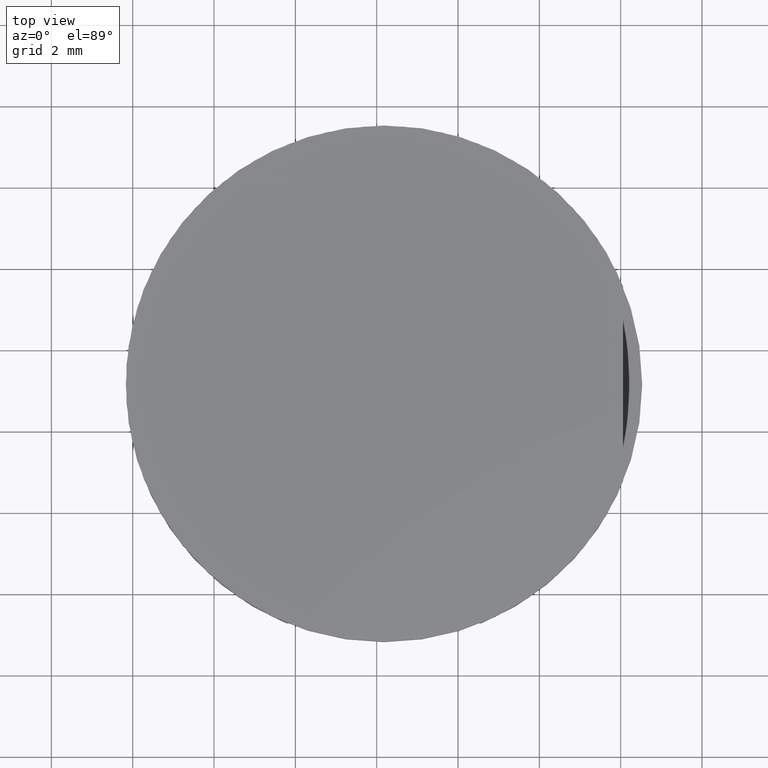
[diagram: clean part render]
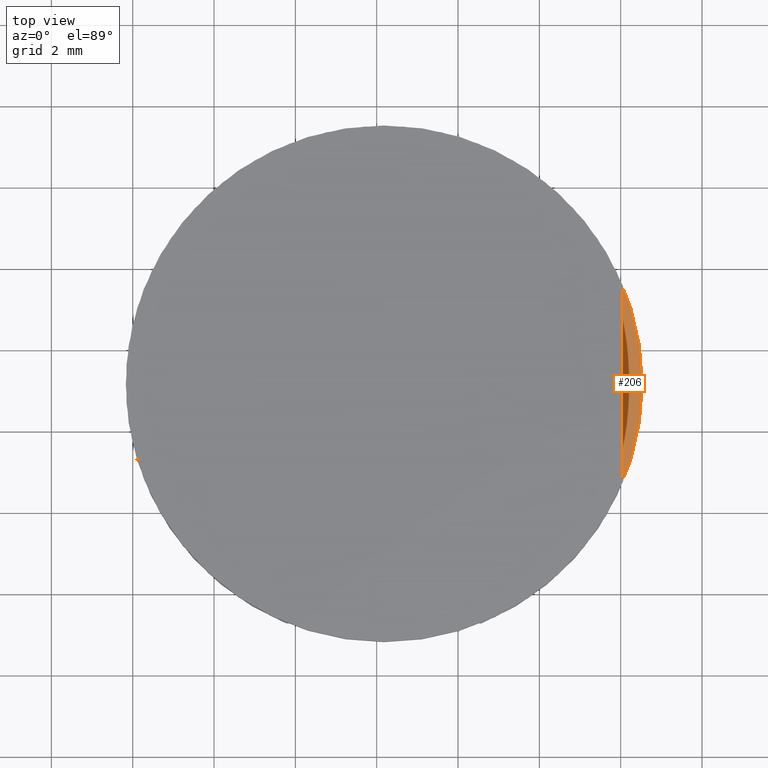
[diagram: same view with one face highlighted and labeled with its STEP entity id]
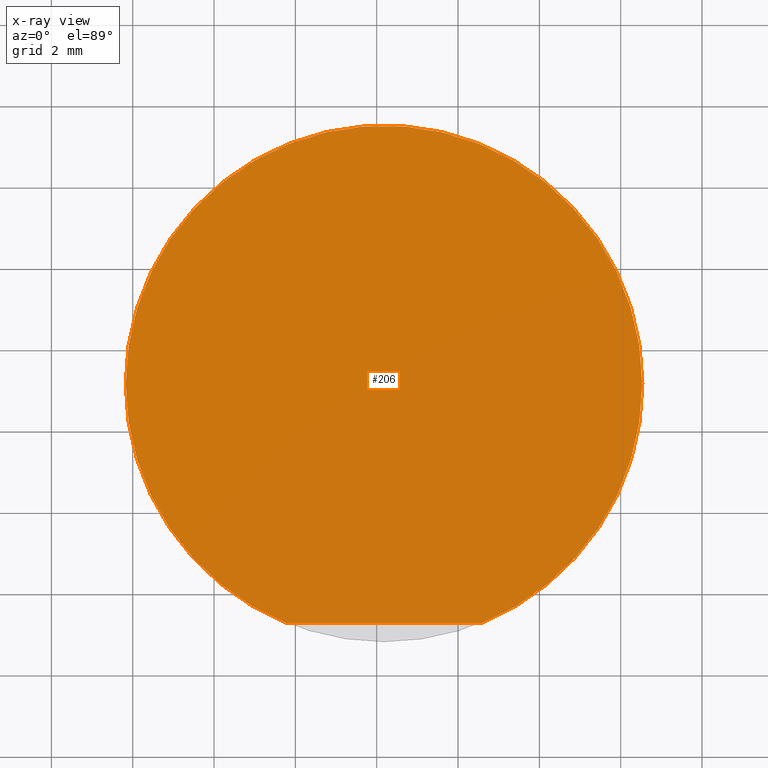
[diagram: x-ray of the same camera — body ghosted, the highlighted face saturated]
A machine part, top view. The second image highlights one B-rep face of the part: STEP entity #206.
The next image is the same camera in x-ray: the body ghosted, the highlighted face saturated — about 0% of this face is hidden behind the body in this view.
In plain terms, the highlighted planar face has unit normal (0, 0, 1).
Its self-contained STEP definition (entity closure, byte-faithful):
#23 = CARTESIAN_POINT ( 'NONE',  ( 12.17957565082418014, -0.8299026143560144231, 3.986184743181585777 ) ) ;
#27 = ORIENTED_EDGE ( 'NONE', *, *, #93, .T. ) ;
#34 = ORIENTED_EDGE ( 'NONE', *, *, #186, .T. ) ;
#46 = DIRECTION ( 'NONE',  ( -1.000000000000000000, -0.0000000000000000000, -0.0000000000000000000 ) ) ;
#51 = CARTESIAN_POINT ( 'NONE',  ( 12.17957565082418014, -0.8299026143560144231, 3.986184743181585777 ) ) ;
#55 = AXIS2_PLACEMENT_3D ( 'NONE', #370, #499, #441 ) ;
#88 = AXIS2_PLACEMENT_3D ( 'NONE', #51, #348, #176 ) ;
#92 = CARTESIAN_POINT ( 'NONE',  ( 14.57709520236072720, -6.709902614356014539, 3.986184743181585777 ) ) ;
#93 = EDGE_CURVE ( 'NONE', #508, #255, #188, .T. ) ;
#97 = CARTESIAN_POINT ( 'NONE',  ( 5.829575650824181388, -0.8299026143560144231, 3.986184743181585777 ) ) ;
#113 = ORIENTED_EDGE ( 'NONE', *, *, #158, .F. ) ;
#129 = LINE ( 'NONE', #472, #212 ) ;
#145 = AXIS2_PLACEMENT_3D ( 'NONE', #23, #406, #364 ) ;
#152 = PLANE ( 'NONE',  #304 ) ;
#158 = EDGE_CURVE ( 'NONE', #508, #539, #129, .T. ) ;
#166 = ORIENTED_EDGE ( 'NONE', *, *, #403, .T. ) ;
#176 = DIRECTION ( 'NONE',  ( 1.000000000000000000, 0.0000000000000000000, 0.0000000000000000000 ) ) ;
#186 = EDGE_CURVE ( 'NONE', #341, #539, #469, .T. ) ;
#188 = CIRCLE ( 'NONE', #88, 6.349999999999997868 ) ;
#206 = ADVANCED_FACE ( 'NONE', ( #365 ), #152, .T. ) ;
#212 = VECTOR ( 'NONE', #46, 1000.000000000000000 ) ;
#255 = VERTEX_POINT ( 'NONE', #461 ) ;
#300 = DIRECTION ( 'NONE',  ( 1.000000000000000000, 0.0000000000000000000, -0.0000000000000000000 ) ) ;
#304 = AXIS2_PLACEMENT_3D ( 'NONE', #319, #487, #300 ) ;
#319 = CARTESIAN_POINT ( 'NONE',  ( 12.17957565082418014, -0.8299026143560144231, 3.986184743181585777 ) ) ;
#341 = VERTEX_POINT ( 'NONE', #97 ) ;
#348 = DIRECTION ( 'NONE',  ( 0.0000000000000000000, 0.0000000000000000000, 1.000000000000000000 ) ) ;
#354 = CARTESIAN_POINT ( 'NONE',  ( 9.782056099287634865, -6.709902614356014539, 3.986184743181585777 ) ) ;
#364 = DIRECTION ( 'NONE',  ( 1.000000000000000000, 0.0000000000000000000, 0.0000000000000000000 ) ) ;
#365 = FACE_OUTER_BOUND ( 'NONE', #424, .T. ) ;
#370 = CARTESIAN_POINT ( 'NONE',  ( 12.17957565082418014, -0.8299026143560144231, 3.986184743181585777 ) ) ;
#403 = EDGE_CURVE ( 'NONE', #255, #341, #536, .T. ) ;
#406 = DIRECTION ( 'NONE',  ( 0.0000000000000000000, 0.0000000000000000000, 1.000000000000000000 ) ) ;
#424 = EDGE_LOOP ( 'NONE', ( #113, #27, #166, #34 ) ) ;
#441 = DIRECTION ( 'NONE',  ( 1.000000000000000000, 0.0000000000000000000, 0.0000000000000000000 ) ) ;
#461 = CARTESIAN_POINT ( 'NONE',  ( 18.52957565082417801, -0.8299026143560136459, 3.986184743181585777 ) ) ;
#469 = CIRCLE ( 'NONE', #55, 6.349999999999997868 ) ;
#472 = CARTESIAN_POINT ( 'NONE',  ( 6.292237577133167115, -6.709902614356014539, 3.986184743181585777 ) ) ;
#487 = DIRECTION ( 'NONE',  ( 0.0000000000000000000, 0.0000000000000000000, 1.000000000000000000 ) ) ;
#499 = DIRECTION ( 'NONE',  ( 0.0000000000000000000, 0.0000000000000000000, 1.000000000000000000 ) ) ;
#508 = VERTEX_POINT ( 'NONE', #92 ) ;
#536 = CIRCLE ( 'NONE', #145, 6.349999999999997868 ) ;
#539 = VERTEX_POINT ( 'NONE', #354 ) ;